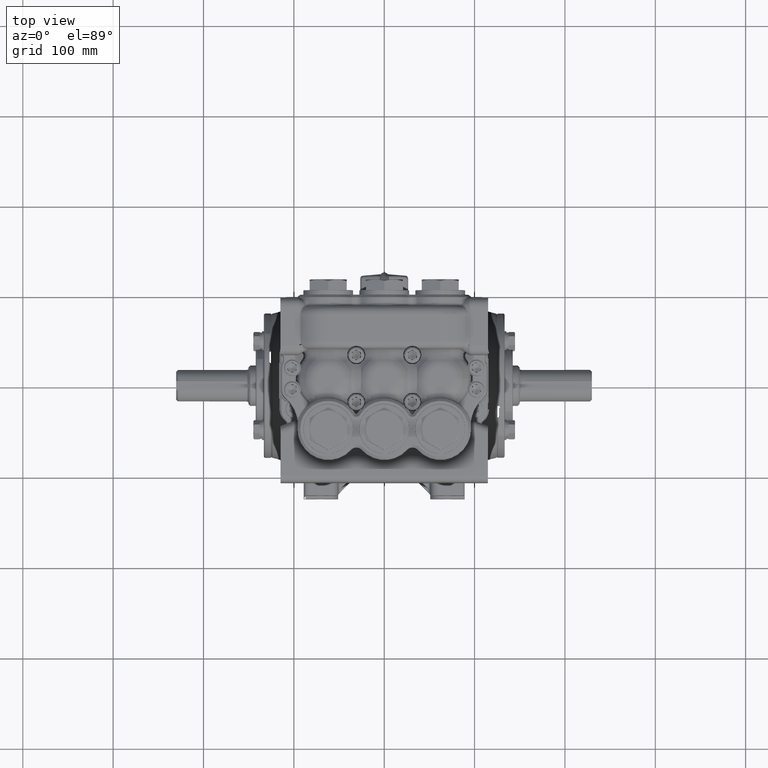
[diagram: clean part render]
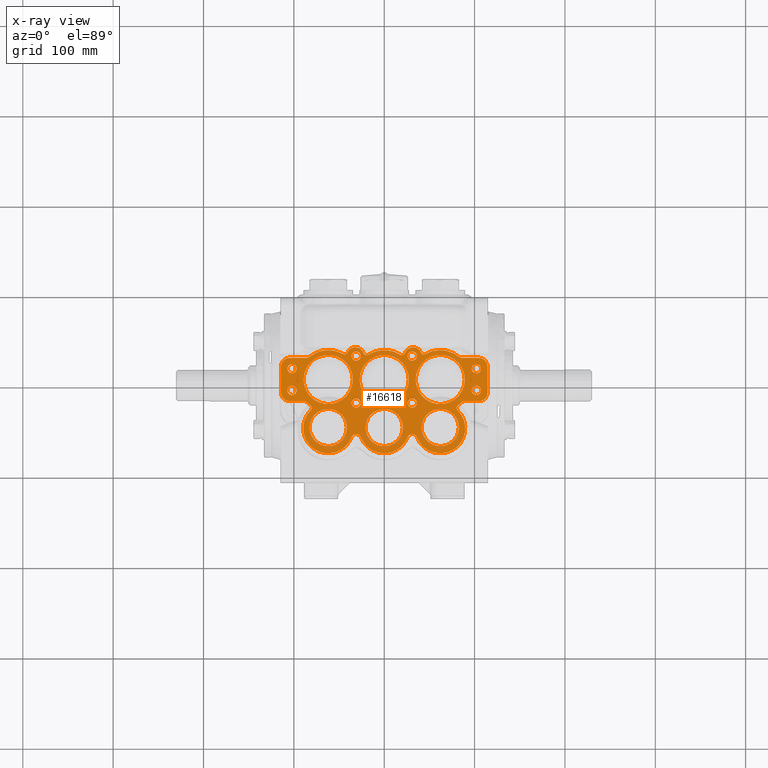
[diagram: x-ray — body ghosted, one internal face saturated and labeled with its STEP entity id]
A machine part, top view, then the same camera in x-ray: the body is ghosted and one INTERNAL B-rep face — a face not visible from any outside direction — is saturated and labeled: STEP entity #16618.
In plain terms, the highlighted planar face has unit normal (0, 0, 1).
Its self-contained STEP definition (entity closure, byte-faithful):
#87 = EDGE_CURVE ( 'NONE', #70146, #107165, #109327, .T. ) ;
#247 = EDGE_LOOP ( 'NONE', ( #92332, #5311 ) ) ;
#336 = ORIENTED_EDGE ( 'NONE', *, *, #91990, .T. ) ;
#935 = DIRECTION ( 'NONE',  ( -0.0000000000000000000, -0.0000000000000000000, 1.000000000000000000 ) ) ;
#1042 = ORIENTED_EDGE ( 'NONE', *, *, #62685, .T. ) ;
#1096 = AXIS2_PLACEMENT_3D ( 'NONE', #120310, #25365, #67637 ) ;
#1102 = CARTESIAN_POINT ( 'NONE',  ( -2.440944881889764329, -3.329552058504237249E-16, 15.33165354330710350 ) ) ;
#1359 = DIRECTION ( 'NONE',  ( -0.0000000000000000000, -0.0000000000000000000, 1.000000000000000000 ) ) ;
#1534 = CARTESIAN_POINT ( 'NONE',  ( -4.499999999999995559, -0.5687992125984255853, 15.33165354330710350 ) ) ;
#1686 = CIRCLE ( 'NONE', #79221, 1.363000000000001544 ) ;
#1700 = ORIENTED_EDGE ( 'NONE', *, *, #66561, .T. ) ;
#1773 = ORIENTED_EDGE ( 'NONE', *, *, #129020, .T. ) ;
#2372 = CARTESIAN_POINT ( 'NONE',  ( 3.361465562303388666, 0.9474999999999952349, 15.33165354330710350 ) ) ;
#2503 = DIRECTION ( 'NONE',  ( 0.0000000000000000000, 0.0000000000000000000, 1.000000000000000000 ) ) ;
#2916 = CARTESIAN_POINT ( 'NONE',  ( -3.302499300227540679, -1.237654226447215899, 15.33165354330710350 ) ) ;
#2980 = EDGE_CURVE ( 'NONE', #101355, #34244, #62483, .T. ) ;
#3119 = EDGE_CURVE ( 'NONE', #28135, #40274, #4846, .T. ) ;
#3217 = EDGE_CURVE ( 'NONE', #85536, #23953, #35841, .T. ) ;
#3228 = VERTEX_POINT ( 'NONE', #29912 ) ;
#3454 = AXIS2_PLACEMENT_3D ( 'NONE', #103724, #8750, #51070 ) ;
#3722 = LINE ( 'NONE', #46039, #18727 ) ;
#3799 = AXIS2_PLACEMENT_3D ( 'NONE', #125204, #30244, #72523 ) ;
#3849 = DIRECTION ( 'NONE',  ( 0.0000000000000000000, 0.0000000000000000000, -1.000000000000000000 ) ) ;
#3881 = ORIENTED_EDGE ( 'NONE', *, *, #19353, .T. ) ;
#4259 = AXIS2_PLACEMENT_3D ( 'NONE', #74408, #116692, #21718 ) ;
#4263 = CARTESIAN_POINT ( 'NONE',  ( -1.631000000000000671, -2.092000000000000970, 15.33165354330710350 ) ) ;
#4294 = CARTESIAN_POINT ( 'NONE',  ( 1.220472440944881276, -1.023622047244094224, 15.33165354330710350 ) ) ;
#4546 = CIRCLE ( 'NONE', #82088, 1.092499999999994698 ) ;
#4707 = DIRECTION ( 'NONE',  ( 1.000000000000000000, 0.0000000000000000000, 0.0000000000000000000 ) ) ;
#4738 = FACE_BOUND ( 'NONE', #7419, .T. ) ;
#4846 = CIRCLE ( 'NONE', #124403, 0.1450000000000045974 ) ;
#5213 = EDGE_CURVE ( 'NONE', #19508, #7643, #71969, .T. ) ;
#5311 = ORIENTED_EDGE ( 'NONE', *, *, #54598, .F. ) ;
#5405 = CARTESIAN_POINT ( 'NONE',  ( 2.440999999999998948, 0.0000000000000000000, 15.33165354330710350 ) ) ;
#5419 = PLANE ( 'NONE',  #109583 ) ;
#5575 = ORIENTED_EDGE ( 'NONE', *, *, #125056, .F. ) ;
#5624 = ORIENTED_EDGE ( 'NONE', *, *, #46014, .T. ) ;
#5964 = VECTOR ( 'NONE', #64514, 39.37007874015748143 ) ;
#5987 = CARTESIAN_POINT ( 'NONE',  ( 1.220472440944881276, -2.595029314722647751, 15.33165354330710350 ) ) ;
#6256 = VERTEX_POINT ( 'NONE', #100017 ) ;
#6283 = EDGE_CURVE ( 'NONE', #60891, #94788, #109715, .T. ) ;
#6342 = DIRECTION ( 'NONE',  ( 1.000000000000000000, 0.0000000000000000000, 0.0000000000000000000 ) ) ;
#6785 = EDGE_LOOP ( 'NONE', ( #1042, #24891 ) ) ;
#6951 = AXIS2_PLACEMENT_3D ( 'NONE', #93929, #136193, #41255 ) ;
#7060 = EDGE_CURVE ( 'NONE', #30432, #6256, #30191, .T. ) ;
#7375 = AXIS2_PLACEMENT_3D ( 'NONE', #37364, #79639, #121901 ) ;
#7419 = EDGE_LOOP ( 'NONE', ( #75096, #5575 ) ) ;
#7643 = VERTEX_POINT ( 'NONE', #129572 ) ;
#7859 = CIRCLE ( 'NONE', #85376, 0.2007874015748029040 ) ;
#7908 = AXIS2_PLACEMENT_3D ( 'NONE', #66886, #109151, #14176 ) ;
#7942 = CARTESIAN_POINT ( 'NONE',  ( -3.266504291152520167, 0.9821103103917191435, 15.33165354330710350 ) ) ;
#8294 = CIRCLE ( 'NONE', #85776, 0.1457408926346309141 ) ;
#8339 = ORIENTED_EDGE ( 'NONE', *, *, #81875, .F. ) ;
#8521 = AXIS2_PLACEMENT_3D ( 'NONE', #4294, #78487, #120758 ) ;
#8623 = VERTEX_POINT ( 'NONE', #4263 ) ;
#8750 = DIRECTION ( 'NONE',  ( 0.0000000000000000000, 0.0000000000000000000, 1.000000000000000000 ) ) ;
#8767 = DIRECTION ( 'NONE',  ( 1.000000000000000000, 0.0000000000000000000, 0.0000000000000000000 ) ) ;
#8843 = EDGE_LOOP ( 'NONE', ( #98618, #10335 ) ) ;
#9165 = ORIENTED_EDGE ( 'NONE', *, *, #6283, .T. ) ;
#9184 = VECTOR ( 'NONE', #39967, 39.37007874015748143 ) ;
#9223 = VERTEX_POINT ( 'NONE', #79326 ) ;
#9289 = VERTEX_POINT ( 'NONE', #48815 ) ;
#9517 = ORIENTED_EDGE ( 'NONE', *, *, #89019, .T. ) ;
#9530 = CARTESIAN_POINT ( 'NONE',  ( 1.603962561608296866, 1.182100231262654511, 15.33165354330710350 ) ) ;
#9575 = EDGE_CURVE ( 'NONE', #96112, #83752, #109901, .T. ) ;
#9746 = CARTESIAN_POINT ( 'NONE',  ( -3.508033327146295122, -0.9474999999999960121, 15.33165354330710350 ) ) ;
#9971 = DIRECTION ( 'NONE',  ( -0.0000000000000000000, -0.0000000000000000000, 1.000000000000000000 ) ) ;
#10335 = ORIENTED_EDGE ( 'NONE', *, *, #2980, .F. ) ;
#10632 = DIRECTION ( 'NONE',  ( 1.000000000000000000, 0.0000000000000000000, 0.0000000000000000000 ) ) ;
#10792 = CARTESIAN_POINT ( 'NONE',  ( 1.371092085564177943, 1.310259302796248620E-16, 15.33165354330710350 ) ) ;
#10981 = EDGE_CURVE ( 'NONE', #3228, #30918, #8294, .T. ) ;
#12131 = AXIS2_PLACEMENT_3D ( 'NONE', #63361, #105629, #10632 ) ;
#12150 = DIRECTION ( 'NONE',  ( 1.000000000000000000, 0.0000000000000000000, 0.0000000000000000000 ) ) ;
#13058 = CIRCLE ( 'NONE', #90632, 1.282999999999996144 ) ;
#13344 = CARTESIAN_POINT ( 'NONE',  ( -1.204221972081856105E-15, -2.092000000000000082, 15.33165354330710350 ) ) ;
#13380 = CARTESIAN_POINT ( 'NONE',  ( 0.8099999999999990541, -2.092000000000000082, 15.33165354330710350 ) ) ;
#14039 = DIRECTION ( 'NONE',  ( 1.000000000000000000, 0.0000000000000000000, 0.0000000000000000000 ) ) ;
#14176 = DIRECTION ( 'NONE',  ( 1.000000000000000000, 0.0000000000000000000, 0.0000000000000000000 ) ) ;
#14372 = CARTESIAN_POINT ( 'NONE',  ( 3.266504291152518835, 0.9821103103917191435, 15.33165354330710350 ) ) ;
#14999 = DIRECTION ( 'NONE',  ( 1.000000000000000000, 0.0000000000000000000, 0.0000000000000000000 ) ) ;
#15397 = VERTEX_POINT ( 'NONE', #123632 ) ;
#15583 = DIRECTION ( 'NONE',  ( 1.000000000000000000, 0.0000000000000000000, 0.0000000000000000000 ) ) ;
#15824 = FACE_BOUND ( 'NONE', #112547, .T. ) ;
#16029 = DIRECTION ( 'NONE',  ( 1.000000000000000000, 0.0000000000000000000, 0.0000000000000000000 ) ) ;
#16031 = VERTEX_POINT ( 'NONE', #74878 ) ;
#16492 = ORIENTED_EDGE ( 'NONE', *, *, #32915, .T. ) ;
#16618 = ADVANCED_FACE ( 'NONE', ( #57440, #99709, #4738, #47054, #89343, #131611, #36660, #78927, #121201, #26255, #68530, #110796, #15824, #58122, #100392 ), #5419, .T. ) ;
#16821 = DIRECTION ( 'NONE',  ( 0.0000000000000000000, 0.0000000000000000000, 1.000000000000000000 ) ) ;
#17545 = VERTEX_POINT ( 'NONE', #72663 ) ;
#17908 = ORIENTED_EDGE ( 'NONE', *, *, #126475, .T. ) ;
#17968 = CARTESIAN_POINT ( 'NONE',  ( 3.362644217051137918, -1.004111216730033895, 15.33165354330710350 ) ) ;
#18180 = CARTESIAN_POINT ( 'NONE',  ( -3.362644217051137918, -1.004111216730035006, 15.33165354330710350 ) ) ;
#18562 = DIRECTION ( 'NONE',  ( 1.000000000000000000, 0.0000000000000000000, 0.0000000000000000000 ) ) ;
#18727 = VECTOR ( 'NONE', #88332, 39.37007874015748143 ) ;
#18790 = CARTESIAN_POINT ( 'NONE',  ( 1.736395246598151143, 1.242944226301745170, 15.33165354330710350 ) ) ;
#19353 = EDGE_CURVE ( 'NONE', #66609, #113968, #117188, .T. ) ;
#19508 = VERTEX_POINT ( 'NONE', #35377 ) ;
#19802 = EDGE_CURVE ( 'NONE', #98849, #72262, #32614, .T. ) ;
#20108 = EDGE_LOOP ( 'NONE', ( #90124, #53494, #103084, #1700, #83814, #45259, #9517, #112330, #336, #61666, #87093, #113833, #130659, #53950, #9165, #110227, #28709, #112581, #65321, #132116, #3881, #17908, #35906, #31374, #45826, #52262, #103572, #78387, #1773, #120584, #107615, #41533, #65953 ) ) ;
#20221 = ORIENTED_EDGE ( 'NONE', *, *, #64283, .T. ) ;
#20703 = EDGE_CURVE ( 'NONE', #115434, #28135, #1686, .T. ) ;
#21153 = CARTESIAN_POINT ( 'NONE',  ( 1.421161981903317217, -2.517901445895005086, 15.33165354330710350 ) ) ;
#21364 = CARTESIAN_POINT ( 'NONE',  ( -3.201549489594020415, -1.341741380952743867, 15.33165354330710350 ) ) ;
#21718 = DIRECTION ( 'NONE',  ( 1.000000000000000000, 0.0000000000000000000, 0.0000000000000000000 ) ) ;
#21887 = CIRCLE ( 'NONE', #99343, 0.2007874015748029040 ) ;
#21900 = DIRECTION ( 'NONE',  ( 0.0000000000000000000, 0.0000000000000000000, 1.000000000000000000 ) ) ;
#22024 = CARTESIAN_POINT ( 'NONE',  ( -4.216535433070866645, 0.4724409448818898127, 15.33165354330710350 ) ) ;
#22228 = CARTESIAN_POINT ( 'NONE',  ( 1.259842519685038909, 0.9474999999999980105, 15.33165354330710350 ) ) ;
#22431 = CARTESIAN_POINT ( 'NONE',  ( 4.499999999999995559, -0.5687992125984234759, 15.33165354330710350 ) ) ;
#23953 = VERTEX_POINT ( 'NONE', #93308 ) ;
#24057 = CIRCLE ( 'NONE', #101542, 1.069907914435821006 ) ;
#24082 = CIRCLE ( 'NONE', #101553, 0.8100000000000000533 ) ;
#24129 = VERTEX_POINT ( 'NONE', #2372 ) ;
#24336 = CARTESIAN_POINT ( 'NONE',  ( -5.463695987328526437E-16, 0.0000000000000000000, 15.33165354330710350 ) ) ;
#24383 = CIRCLE ( 'NONE', #101870, 0.1475790954831033286 ) ;
#24719 = CARTESIAN_POINT ( 'NONE',  ( -0.6819191757926990061, 1.086772854687765744, 15.33165354330710350 ) ) ;
#24891 = ORIENTED_EDGE ( 'NONE', *, *, #69694, .T. ) ;
#25365 = DIRECTION ( 'NONE',  ( 0.0000000000000000000, 0.0000000000000000000, 1.000000000000000000 ) ) ;
#25951 = CARTESIAN_POINT ( 'NONE',  ( -3.219657529233524773, -1.118649012365754203, 15.33165354330710350 ) ) ;
#25969 = DIRECTION ( 'NONE',  ( 1.000000000000000000, 0.0000000000000000000, 0.0000000000000000000 ) ) ;
#26235 = DIRECTION ( 'NONE',  ( 0.0000000000000000000, 0.0000000000000000000, 1.000000000000000000 ) ) ;
#26255 = FACE_BOUND ( 'NONE', #111768, .T. ) ;
#27751 = CARTESIAN_POINT ( 'NONE',  ( -4.015748031496062964, 0.4724409448818898127, 15.33165354330710350 ) ) ;
#28135 = VERTEX_POINT ( 'NONE', #25951 ) ;
#28478 = AXIS2_PLACEMENT_3D ( 'NONE', #13344, #55660, #97928 ) ;
#28709 = ORIENTED_EDGE ( 'NONE', *, *, #111149, .T. ) ;
#29445 = AXIS2_PLACEMENT_3D ( 'NONE', #61461, #103742, #8767 ) ;
#29670 = DIRECTION ( 'NONE',  ( 1.000000000000000000, -9.255538478269908516E-16, 0.0000000000000000000 ) ) ;
#29912 = CARTESIAN_POINT ( 'NONE',  ( -1.603962561608297754, 1.182100231262655177, 15.33165354330710350 ) ) ;
#30047 = CIRCLE ( 'NONE', #107497, 0.2007874015748029040 ) ;
#30191 = CIRCLE ( 'NONE', #47905, 1.069907914435821006 ) ;
#30244 = DIRECTION ( 'NONE',  ( 0.0000000000000000000, 0.0000000000000000000, -1.000000000000000000 ) ) ;
#30432 = VERTEX_POINT ( 'NONE', #10792 ) ;
#30575 = VERTEX_POINT ( 'NONE', #131205 ) ;
#30782 = AXIS2_PLACEMENT_3D ( 'NONE', #96351, #1359, #43680 ) ;
#30839 = DIRECTION ( 'NONE',  ( 0.0000000000000000000, 0.0000000000000000000, -1.000000000000000000 ) ) ;
#30918 = VERTEX_POINT ( 'NONE', #133148 ) ;
#31168 = DIRECTION ( 'NONE',  ( -0.0000000000000000000, -0.0000000000000000000, -1.000000000000000000 ) ) ;
#31170 = EDGE_LOOP ( 'NONE', ( #94272, #69979 ) ) ;
#31176 = CARTESIAN_POINT ( 'NONE',  ( -2.441000000000000725, -2.092000000000000970, 15.33165354330710350 ) ) ;
#31374 = ORIENTED_EDGE ( 'NONE', *, *, #9575, .T. ) ;
#31435 = CARTESIAN_POINT ( 'NONE',  ( 3.302499300227539347, -1.237654226447215899, 15.33165354330710350 ) ) ;
#31899 = AXIS2_PLACEMENT_3D ( 'NONE', #24336, #66608, #108877 ) ;
#31904 = CIRCLE ( 'NONE', #109332, 1.092499999999994476 ) ;
#31919 = CIRCLE ( 'NONE', #109350, 0.2007874015748029040 ) ;
#32500 = CIRCLE ( 'NONE', #127661, 1.092499999999994476 ) ;
#32544 = ORIENTED_EDGE ( 'NONE', *, *, #87, .T. ) ;
#32614 = CIRCLE ( 'NONE', #110075, 0.3787007874015705378 ) ;
#32915 = EDGE_CURVE ( 'NONE', #6256, #30432, #111419, .T. ) ;
#33093 = CIRCLE ( 'NONE', #110560, 0.8100000000000000533 ) ;
#33151 = DIRECTION ( 'NONE',  ( 1.000000000000000000, 0.0000000000000000000, 0.0000000000000000000 ) ) ;
#33487 = DIRECTION ( 'NONE',  ( 1.000000000000000000, 0.0000000000000000000, 0.0000000000000000000 ) ) ;
#33576 = DIRECTION ( 'NONE',  ( 1.000000000000000000, 0.0000000000000000000, 0.0000000000000000000 ) ) ;
#33858 = CIRCLE ( 'NONE', #111324, 1.092499999999994476 ) ;
#34010 = CARTESIAN_POINT ( 'NONE',  ( 1.259842519685039131, -0.9474999999999947908, 15.33165354330710350 ) ) ;
#34244 = VERTEX_POINT ( 'NONE', #95797 ) ;
#34887 = CIRCLE ( 'NONE', #112374, 0.1537240795470805055 ) ;
#34960 = DIRECTION ( 'NONE',  ( 0.0000000000000000000, 0.0000000000000000000, 1.000000000000000000 ) ) ;
#35377 = CARTESIAN_POINT ( 'NONE',  ( -3.814960629921260615, -0.4724409448818896462, 15.33165354330710350 ) ) ;
#35571 = VERTEX_POINT ( 'NONE', #124664 ) ;
#35841 = CIRCLE ( 'NONE', #95615, 0.2007874015748029040 ) ;
#35906 = ORIENTED_EDGE ( 'NONE', *, *, #98004, .T. ) ;
#36000 = CARTESIAN_POINT ( 'NONE',  ( -5.463695987328526437E-16, -2.125984251968504157, 15.33165354330710350 ) ) ;
#36006 = VERTEX_POINT ( 'NONE', #131997 ) ;
#36021 = DIRECTION ( 'NONE',  ( -0.0000000000000000000, -0.0000000000000000000, 1.000000000000000000 ) ) ;
#36210 = DIRECTION ( 'NONE',  ( 0.0000000000000000000, 0.0000000000000000000, 1.000000000000000000 ) ) ;
#36651 = EDGE_LOOP ( 'NONE', ( #8339, #79278 ) ) ;
#36660 = FACE_BOUND ( 'NONE', #247, .T. ) ;
#36867 = CARTESIAN_POINT ( 'NONE',  ( -4.015748031496062964, 0.4724409448818898127, 15.33165354330710350 ) ) ;
#37361 = AXIS2_PLACEMENT_3D ( 'NONE', #59033, #101313, #6342 ) ;
#37364 = CARTESIAN_POINT ( 'NONE',  ( -1.220472440944882386, -2.595029314722647751, 15.33165354330710350 ) ) ;
#37643 = DIRECTION ( 'NONE',  ( -0.0000000000000000000, 1.000000000000000000, 0.0000000000000000000 ) ) ;
#37691 = CARTESIAN_POINT ( 'NONE',  ( -1.019782899986446667, -2.517901445895004642, 15.33165354330710350 ) ) ;
#37981 = VERTEX_POINT ( 'NONE', #7942 ) ;
#39274 = AXIS2_PLACEMENT_3D ( 'NONE', #5987, #48312, #90624 ) ;
#39650 = DIRECTION ( 'NONE',  ( 1.000000000000000000, 0.0000000000000000000, 0.0000000000000000000 ) ) ;
#39683 = VERTEX_POINT ( 'NONE', #112381 ) ;
#39967 = DIRECTION ( 'NONE',  ( -1.000000000000000000, 5.055837290980251602E-16, 0.0000000000000000000 ) ) ;
#40071 = CIRCLE ( 'NONE', #117482, 0.2007874015748029040 ) ;
#40231 = VERTEX_POINT ( 'NONE', #60935 ) ;
#40274 = VERTEX_POINT ( 'NONE', #21364 ) ;
#40332 = VERTEX_POINT ( 'NONE', #60762 ) ;
#40333 = DIRECTION ( 'NONE',  ( -0.0000000000000000000, -0.0000000000000000000, 1.000000000000000000 ) ) ;
#40343 = CIRCLE ( 'NONE', #117755, 0.1475790954831082413 ) ;
#40501 = DIRECTION ( 'NONE',  ( 1.000000000000000000, 0.0000000000000000000, 0.0000000000000000000 ) ) ;
#41100 = EDGE_CURVE ( 'NONE', #101208, #86594, #52547, .T. ) ;
#41255 = DIRECTION ( 'NONE',  ( 1.000000000000000000, 0.0000000000000000000, 0.0000000000000000000 ) ) ;
#41533 = ORIENTED_EDGE ( 'NONE', *, *, #54470, .T. ) ;
#41636 = EDGE_CURVE ( 'NONE', #94788, #75247, #34887, .T. ) ;
#41669 = CARTESIAN_POINT ( 'NONE',  ( -1.204221972081856105E-15, -2.092000000000000082, 15.33165354330710350 ) ) ;
#41831 = DIRECTION ( 'NONE',  ( 1.000000000000000000, 0.0000000000000000000, 0.0000000000000000000 ) ) ;
#43172 = ORIENTED_EDGE ( 'NONE', *, *, #49829, .T. ) ;
#43269 = DIRECTION ( 'NONE',  ( 1.000000000000000000, 0.0000000000000000000, 0.0000000000000000000 ) ) ;
#43312 = VECTOR ( 'NONE', #135033, 39.37007874015748143 ) ;
#43417 = EDGE_CURVE ( 'NONE', #34244, #101355, #90549, .T. ) ;
#43427 = DIRECTION ( 'NONE',  ( 0.0000000000000000000, 0.0000000000000000000, 1.000000000000000000 ) ) ;
#43680 = DIRECTION ( 'NONE',  ( 1.000000000000000000, 0.0000000000000000000, 0.0000000000000000000 ) ) ;
#43807 = VERTEX_POINT ( 'NONE', #22024 ) ;
#44823 = DIRECTION ( 'NONE',  ( 1.000000000000000000, 0.0000000000000000000, 0.0000000000000000000 ) ) ;
#45188 = CIRCLE ( 'NONE', #122668, 0.3787007874015705378 ) ;
#45232 = DIRECTION ( 'NONE',  ( -0.0000000000000000000, -0.0000000000000000000, -1.000000000000000000 ) ) ;
#45259 = ORIENTED_EDGE ( 'NONE', *, *, #95931, .T. ) ;
#45394 = EDGE_LOOP ( 'NONE', ( #62748, #107903 ) ) ;
#45698 = AXIS2_PLACEMENT_3D ( 'NONE', #46070, #88365, #130633 ) ;
#45826 = ORIENTED_EDGE ( 'NONE', *, *, #82840, .T. ) ;
#46014 = EDGE_CURVE ( 'NONE', #8623, #35571, #50766, .T. ) ;
#46039 = CARTESIAN_POINT ( 'NONE',  ( 1.259842519685040019, -0.9474999999999933475, 15.33165354330710350 ) ) ;
#46070 = CARTESIAN_POINT ( 'NONE',  ( 3.508033327146296454, -1.162499999999998090, 15.33165354330710350 ) ) ;
#46169 = DIRECTION ( 'NONE',  ( -1.000000000000000000, 0.0000000000000000000, 0.0000000000000000000 ) ) ;
#47054 = FACE_BOUND ( 'NONE', #31170, .T. ) ;
#47722 = DIRECTION ( 'NONE',  ( -0.0000000000000000000, -0.0000000000000000000, -1.000000000000000000 ) ) ;
#47736 = CARTESIAN_POINT ( 'NONE',  ( 1.259842519685038909, 1.024000000000000021, 15.33165354330710350 ) ) ;
#47905 = AXIS2_PLACEMENT_3D ( 'NONE', #5405, #47722, #90018 ) ;
#48133 = CARTESIAN_POINT ( 'NONE',  ( -3.361465562303387333, 0.9474999999999957900, 15.33165354330710350 ) ) ;
#48312 = DIRECTION ( 'NONE',  ( -0.0000000000000000000, -0.0000000000000000000, -1.000000000000000000 ) ) ;
#48684 = EDGE_CURVE ( 'NONE', #87049, #98683, #40071, .T. ) ;
#48815 = CARTESIAN_POINT ( 'NONE',  ( 1.019782899986445557, -2.517901445895005086, 15.33165354330710350 ) ) ;
#48959 = AXIS2_PLACEMENT_3D ( 'NONE', #31435, #73694, #115985 ) ;
#49829 = EDGE_CURVE ( 'NONE', #35571, #8623, #24082, .T. ) ;
#49837 = AXIS2_PLACEMENT_3D ( 'NONE', #57414, #99683, #4707 ) ;
#49867 = VERTEX_POINT ( 'NONE', #22431 ) ;
#49993 = AXIS2_PLACEMENT_3D ( 'NONE', #111792, #16821, #59106 ) ;
#50169 = AXIS2_PLACEMENT_3D ( 'NONE', #131170, #36210, #78484 ) ;
#50431 = EDGE_CURVE ( 'NONE', #30918, #37981, #13058, .T. ) ;
#50475 = LINE ( 'NONE', #92760, #43312 ) ;
#50501 = CIRCLE ( 'NONE', #127930, 0.2007874015748029040 ) ;
#50748 = EDGE_CURVE ( 'NONE', #30575, #112728, #33093, .T. ) ;
#50766 = CIRCLE ( 'NONE', #128187, 0.8100000000000000533 ) ;
#51070 = DIRECTION ( 'NONE',  ( 1.000000000000000000, 0.0000000000000000000, 0.0000000000000000000 ) ) ;
#51101 = CARTESIAN_POINT ( 'NONE',  ( 3.814960629921258839, 0.4724409448818898127, 15.33165354330710350 ) ) ;
#51124 = AXIS2_PLACEMENT_3D ( 'NONE', #67703, #109966, #14999 ) ;
#51687 = AXIS2_PLACEMENT_3D ( 'NONE', #116332, #53256, #95532 ) ;
#52262 = ORIENTED_EDGE ( 'NONE', *, *, #99063, .T. ) ;
#52294 = DIRECTION ( 'NONE',  ( 1.000000000000000000, 0.0000000000000000000, 0.0000000000000000000 ) ) ;
#52432 = CARTESIAN_POINT ( 'NONE',  ( 3.361465562303388666, 1.095079095483103782, 15.33165354330710350 ) ) ;
#52547 = CIRCLE ( 'NONE', #129991, 1.282999999999995477 ) ;
#52629 = CARTESIAN_POINT ( 'NONE',  ( 1.069907914435820340, 0.0000000000000000000, 15.33165354330710350 ) ) ;
#52675 = EDGE_CURVE ( 'NONE', #36006, #60891, #64053, .T. ) ;
#53256 = DIRECTION ( 'NONE',  ( -0.0000000000000000000, -0.0000000000000000000, -1.000000000000000000 ) ) ;
#53494 = ORIENTED_EDGE ( 'NONE', *, *, #118272, .T. ) ;
#53593 = CARTESIAN_POINT ( 'NONE',  ( 4.216535433070864869, -0.4724409448818896462, 15.33165354330710350 ) ) ;
#53950 = ORIENTED_EDGE ( 'NONE', *, *, #52675, .T. ) ;
#54205 = CARTESIAN_POINT ( 'NONE',  ( -1.421259842519686512, -1.023622047244094224, 15.33165354330710350 ) ) ;
#54470 = EDGE_CURVE ( 'NONE', #70699, #9289, #4546, .T. ) ;
#54598 = EDGE_CURVE ( 'NONE', #98683, #87049, #110846, .T. ) ;
#55660 = DIRECTION ( 'NONE',  ( 0.0000000000000000000, 0.0000000000000000000, -1.000000000000000000 ) ) ;
#56379 = EDGE_CURVE ( 'NONE', #24129, #101208, #40343, .T. ) ;
#56399 = AXIS2_PLACEMENT_3D ( 'NONE', #41669, #83948, #126210 ) ;
#57414 = CARTESIAN_POINT ( 'NONE',  ( 4.015748031496062076, -0.4724409448818896462, 15.33165354330710350 ) ) ;
#57440 = FACE_OUTER_BOUND ( 'NONE', #20108, .T. ) ;
#57801 = EDGE_CURVE ( 'NONE', #17545, #16031, #33858, .T. ) ;
#57841 = AXIS2_PLACEMENT_3D ( 'NONE', #18790, #93001, #135267 ) ;
#58122 = FACE_BOUND ( 'NONE', #6785, .T. ) ;
#58530 = VERTEX_POINT ( 'NONE', #78249 ) ;
#59033 = CARTESIAN_POINT ( 'NONE',  ( -2.441000000000000725, 5.978528219360845830E-16, 15.33165354330710350 ) ) ;
#59106 = DIRECTION ( 'NONE',  ( 1.000000000000000000, 0.0000000000000000000, 0.0000000000000000000 ) ) ;
#59315 = EDGE_CURVE ( 'NONE', #106360, #9223, #31904, .T. ) ;
#60640 = ORIENTED_EDGE ( 'NONE', *, *, #126320, .F. ) ;
#60762 = CARTESIAN_POINT ( 'NONE',  ( 1.019685039370078483, -1.023622047244094224, 15.33165354330710350 ) ) ;
#60891 = VERTEX_POINT ( 'NONE', #133084 ) ;
#60914 = CIRCLE ( 'NONE', #1096, 0.3787007874015705378 ) ;
#60935 = CARTESIAN_POINT ( 'NONE',  ( 1.421259842519684291, 1.023622047244094446, 15.33165354330710350 ) ) ;
#61461 = CARTESIAN_POINT ( 'NONE',  ( -1.220472440944882386, 1.023622047244094446, 15.33165354330710350 ) ) ;
#61666 = ORIENTED_EDGE ( 'NONE', *, *, #56379, .T. ) ;
#62483 = CIRCLE ( 'NONE', #122202, 0.2007874015748029040 ) ;
#62685 = EDGE_CURVE ( 'NONE', #130819, #111273, #116184, .T. ) ;
#62748 = ORIENTED_EDGE ( 'NONE', *, *, #3217, .F. ) ;
#63241 = CIRCLE ( 'NONE', #3454, 0.3787007874015708153 ) ;
#63361 = CARTESIAN_POINT ( 'NONE',  ( -4.015748031496062964, -0.4724409448818896462, 15.33165354330710350 ) ) ;
#63590 = CIRCLE ( 'NONE', #3799, 0.8100000000000000533 ) ;
#63928 = VERTEX_POINT ( 'NONE', #85815 ) ;
#64053 = CIRCLE ( 'NONE', #4259, 0.1537240795470798116 ) ;
#64096 = EDGE_CURVE ( 'NONE', #112609, #36006, #63241, .T. ) ;
#64199 = DIRECTION ( 'NONE',  ( 1.000000000000000000, 0.0000000000000000000, 0.0000000000000000000 ) ) ;
#64283 = EDGE_CURVE ( 'NONE', #63928, #91314, #67672, .T. ) ;
#64514 = DIRECTION ( 'NONE',  ( -1.000000000000000000, -5.055837290980251602E-16, 0.0000000000000000000 ) ) ;
#64868 = CARTESIAN_POINT ( 'NONE',  ( 2.440944881889763440, -3.329552058504237249E-16, 15.33165354330710350 ) ) ;
#65321 = ORIENTED_EDGE ( 'NONE', *, *, #50431, .T. ) ;
#65953 = ORIENTED_EDGE ( 'NONE', *, *, #68043, .T. ) ;
#66561 = EDGE_CURVE ( 'NONE', #69176, #106346, #105469, .T. ) ;
#66608 = DIRECTION ( 'NONE',  ( -0.0000000000000000000, -0.0000000000000000000, -1.000000000000000000 ) ) ;
#66609 = VERTEX_POINT ( 'NONE', #48133 ) ;
#66726 = CIRCLE ( 'NONE', #6951, 0.3787007874015708153 ) ;
#66746 = CARTESIAN_POINT ( 'NONE',  ( -1.220472440944883497, -1.023622047244094224, 15.33165354330710350 ) ) ;
#66784 = CARTESIAN_POINT ( 'NONE',  ( 3.814960629921258839, -0.4724409448818896462, 15.33165354330710350 ) ) ;
#66843 = CARTESIAN_POINT ( 'NONE',  ( 1.421259842519684291, -1.023622047244094224, 15.33165354330710350 ) ) ;
#66886 = CARTESIAN_POINT ( 'NONE',  ( -2.441000000000000725, 5.978528219360845830E-16, 15.33165354330710350 ) ) ;
#67151 = CIRCLE ( 'NONE', #7375, 0.2150000000000041323 ) ;
#67637 = DIRECTION ( 'NONE',  ( 1.000000000000000000, 0.0000000000000000000, 0.0000000000000000000 ) ) ;
#67672 = CIRCLE ( 'NONE', #7908, 1.069907914435821006 ) ;
#67703 = CARTESIAN_POINT ( 'NONE',  ( -1.220472440944883497, -1.023622047244094224, 15.33165354330710350 ) ) ;
#68043 = EDGE_CURVE ( 'NONE', #9289, #106360, #99006, .T. ) ;
#68278 = CARTESIAN_POINT ( 'NONE',  ( -0.7636240843073032192, 1.216985759413899970, 15.33165354330710350 ) ) ;
#68304 = CIRCLE ( 'NONE', #8521, 0.2007874015748029040 ) ;
#68506 = DIRECTION ( 'NONE',  ( 1.000000000000000000, 0.0000000000000000000, 0.0000000000000000000 ) ) ;
#68530 = FACE_BOUND ( 'NONE', #73207, .T. ) ;
#68655 = EDGE_LOOP ( 'NONE', ( #43172, #5624 ) ) ;
#69108 = AXIS2_PLACEMENT_3D ( 'NONE', #99075, #36021, #78305 ) ;
#69176 = VERTEX_POINT ( 'NONE', #17968 ) ;
#69494 = AXIS2_PLACEMENT_3D ( 'NONE', #104970, #9971, #52294 ) ;
#69694 = EDGE_CURVE ( 'NONE', #111273, #130819, #88244, .T. ) ;
#69950 = EDGE_CURVE ( 'NONE', #106346, #58530, #128969, .T. ) ;
#69979 = ORIENTED_EDGE ( 'NONE', *, *, #98001, .F. ) ;
#70007 = DIRECTION ( 'NONE',  ( -0.0000000000000000000, -0.0000000000000000000, 1.000000000000000000 ) ) ;
#70027 = AXIS2_PLACEMENT_3D ( 'NONE', #86281, #128530, #33576 ) ;
#70146 = VERTEX_POINT ( 'NONE', #52629 ) ;
#70699 = VERTEX_POINT ( 'NONE', #37691 ) ;
#70855 = AXIS2_PLACEMENT_3D ( 'NONE', #64868, #107135, #12150 ) ;
#71258 = CARTESIAN_POINT ( 'NONE',  ( -4.015748031496062964, -0.4724409448818896462, 15.33165354330710350 ) ) ;
#71969 = CIRCLE ( 'NONE', #12131, 0.2007874015748029040 ) ;
#72262 = VERTEX_POINT ( 'NONE', #76217 ) ;
#72523 = DIRECTION ( 'NONE',  ( -1.000000000000000000, 0.0000000000000000000, 0.0000000000000000000 ) ) ;
#72660 = CARTESIAN_POINT ( 'NONE',  ( -1.019685039370079593, 1.023622047244094446, 15.33165354330710350 ) ) ;
#72663 = CARTESIAN_POINT ( 'NONE',  ( -3.533444881889758804, -2.125984251968504157, 15.33165354330710350 ) ) ;
#73107 = DIRECTION ( 'NONE',  ( -1.000000000000000000, 0.0000000000000000000, 0.0000000000000000000 ) ) ;
#73207 = EDGE_LOOP ( 'NONE', ( #86531, #20221 ) ) ;
#73422 = DIRECTION ( 'NONE',  ( 1.000000000000000000, 0.0000000000000000000, 0.0000000000000000000 ) ) ;
#73428 = DIRECTION ( 'NONE',  ( 0.0000000000000000000, 0.0000000000000000000, -1.000000000000000000 ) ) ;
#73674 = ORIENTED_EDGE ( 'NONE', *, *, #115222, .F. ) ;
#73694 = DIRECTION ( 'NONE',  ( -0.0000000000000000000, -0.0000000000000000000, -1.000000000000000000 ) ) ;
#74055 = ORIENTED_EDGE ( 'NONE', *, *, #135664, .F. ) ;
#74147 = EDGE_CURVE ( 'NONE', #37981, #66609, #24383, .T. ) ;
#74408 = CARTESIAN_POINT ( 'NONE',  ( 0.7636240843073022200, 1.216985759413899304, 15.33165354330710350 ) ) ;
#74878 = CARTESIAN_POINT ( 'NONE',  ( -1.421161981903318550, -2.517901445895005086, 15.33165354330710350 ) ) ;
#75096 = ORIENTED_EDGE ( 'NONE', *, *, #83323, .F. ) ;
#75247 = VERTEX_POINT ( 'NONE', #83927 ) ;
#75373 = VECTOR ( 'NONE', #37643, 39.37007874015748143 ) ;
#76217 = CARTESIAN_POINT ( 'NONE',  ( 4.121299212598424688, 0.9474999999999952349, 15.33165354330710350 ) ) ;
#76286 = DIRECTION ( 'NONE',  ( 1.000000000000000000, 1.967590660934735653E-16, 0.0000000000000000000 ) ) ;
#76954 = ORIENTED_EDGE ( 'NONE', *, *, #102901, .T. ) ;
#77164 = ORIENTED_EDGE ( 'NONE', *, *, #7060, .T. ) ;
#77204 = CARTESIAN_POINT ( 'NONE',  ( 3.219657529233519444, -1.118649012365749984, 15.33165354330710350 ) ) ;
#77248 = DIRECTION ( 'NONE',  ( 1.000000000000000000, 0.0000000000000000000, 0.0000000000000000000 ) ) ;
#78249 = CARTESIAN_POINT ( 'NONE',  ( 4.121299212598424688, -0.9474999999999942357, 15.33165354330710350 ) ) ;
#78271 = DIRECTION ( 'NONE',  ( 0.0000000000000000000, 0.0000000000000000000, 1.000000000000000000 ) ) ;
#78305 = DIRECTION ( 'NONE',  ( 1.000000000000000000, 0.0000000000000000000, 0.0000000000000000000 ) ) ;
#78387 = ORIENTED_EDGE ( 'NONE', *, *, #3119, .T. ) ;
#78484 = DIRECTION ( 'NONE',  ( 1.000000000000000000, 0.0000000000000000000, 0.0000000000000000000 ) ) ;
#78487 = DIRECTION ( 'NONE',  ( -0.0000000000000000000, -0.0000000000000000000, 1.000000000000000000 ) ) ;
#78651 = CARTESIAN_POINT ( 'NONE',  ( -1.736395246598152475, 1.242944226301745614, 15.33165354330710350 ) ) ;
#78927 = FACE_BOUND ( 'NONE', #36651, .T. ) ;
#79177 = EDGE_CURVE ( 'NONE', #15397, #40231, #128852, .T. ) ;
#79221 = AXIS2_PLACEMENT_3D ( 'NONE', #1102, #43427, #85699 ) ;
#79278 = ORIENTED_EDGE ( 'NONE', *, *, #135128, .F. ) ;
#79326 = CARTESIAN_POINT ( 'NONE',  ( 3.201549489594019082, -1.341741380952743645, 15.33165354330710350 ) ) ;
#79639 = DIRECTION ( 'NONE',  ( -0.0000000000000000000, -0.0000000000000000000, -1.000000000000000000 ) ) ;
#80361 = EDGE_CURVE ( 'NONE', #23953, #85536, #89197, .T. ) ;
#81875 = EDGE_CURVE ( 'NONE', #106518, #40332, #129227, .T. ) ;
#82080 = VERTEX_POINT ( 'NONE', #77204 ) ;
#82088 = AXIS2_PLACEMENT_3D ( 'NONE', #36000, #78271, #120548 ) ;
#82098 = EDGE_LOOP ( 'NONE', ( #60640, #74055 ) ) ;
#82349 = CARTESIAN_POINT ( 'NONE',  ( -3.361465562303387333, 1.095079095483099119, 15.33165354330710350 ) ) ;
#82611 = DIRECTION ( 'NONE',  ( 1.000000000000000000, 0.0000000000000000000, 0.0000000000000000000 ) ) ;
#82840 = EDGE_CURVE ( 'NONE', #83752, #134396, #3722, .T. ) ;
#83323 = EDGE_CURVE ( 'NONE', #39683, #43807, #50501, .T. ) ;
#83606 = CARTESIAN_POINT ( 'NONE',  ( -4.121299212598425576, -0.9474999999999961231, 15.33165354330710350 ) ) ;
#83752 = VERTEX_POINT ( 'NONE', #83606 ) ;
#83814 = ORIENTED_EDGE ( 'NONE', *, *, #69950, .T. ) ;
#83927 = CARTESIAN_POINT ( 'NONE',  ( -0.9068944816309724155, 1.161266051201140570, 15.33165354330710350 ) ) ;
#83948 = DIRECTION ( 'NONE',  ( 0.0000000000000000000, 0.0000000000000000000, -1.000000000000000000 ) ) ;
#85376 = AXIS2_PLACEMENT_3D ( 'NONE', #71258, #113527, #18562 ) ;
#85536 = VERTEX_POINT ( 'NONE', #72660 ) ;
#85699 = DIRECTION ( 'NONE',  ( 1.000000000000000000, 0.0000000000000000000, 0.0000000000000000000 ) ) ;
#85776 = AXIS2_PLACEMENT_3D ( 'NONE', #78651, #120926, #25969 ) ;
#85815 = CARTESIAN_POINT ( 'NONE',  ( -3.510907914435821287, 7.288787522157093710E-16, 15.33165354330710350 ) ) ;
#85836 = CARTESIAN_POINT ( 'NONE',  ( 2.440944881889763440, -2.989295336501413453E-16, 15.33165354330710350 ) ) ;
#86191 = CARTESIAN_POINT ( 'NONE',  ( -2.440944881889764329, -2.125984251968504157, 15.33165354330710350 ) ) ;
#86281 = CARTESIAN_POINT ( 'NONE',  ( -3.508033327146295122, -1.162500000000000089, 15.33165354330710350 ) ) ;
#86531 = ORIENTED_EDGE ( 'NONE', *, *, #135226, .T. ) ;
#86594 = VERTEX_POINT ( 'NONE', #111529 ) ;
#87049 = VERTEX_POINT ( 'NONE', #117470 ) ;
#87093 = ORIENTED_EDGE ( 'NONE', *, *, #41100, .T. ) ;
#87519 = DIRECTION ( 'NONE',  ( 1.000000000000000000, -7.536132396314969609E-15, 0.0000000000000000000 ) ) ;
#88244 = CIRCLE ( 'NONE', #28478, 0.8100000000000002753 ) ;
#88332 = DIRECTION ( 'NONE',  ( 1.000000000000000000, 5.902771982804207944E-16, 0.0000000000000000000 ) ) ;
#88343 = EDGE_CURVE ( 'NONE', #82080, #69176, #130598, .T. ) ;
#88365 = DIRECTION ( 'NONE',  ( -0.0000000000000000000, -0.0000000000000000000, -1.000000000000000000 ) ) ;
#89019 = EDGE_CURVE ( 'NONE', #49867, #98849, #90325, .T. ) ;
#89197 = CIRCLE ( 'NONE', #29445, 0.2007874015748029040 ) ;
#89343 = FACE_BOUND ( 'NONE', #8843, .T. ) ;
#90018 = DIRECTION ( 'NONE',  ( 1.000000000000000000, 0.0000000000000000000, 0.0000000000000000000 ) ) ;
#90032 = DIRECTION ( 'NONE',  ( 0.0000000000000000000, 0.0000000000000000000, 1.000000000000000000 ) ) ;
#90124 = ORIENTED_EDGE ( 'NONE', *, *, #59315, .T. ) ;
#90325 = LINE ( 'NONE', #132593, #75373 ) ;
#90549 = CIRCLE ( 'NONE', #30782, 0.2007874015748029040 ) ;
#90624 = DIRECTION ( 'NONE',  ( 1.000000000000000000, 0.0000000000000000000, 0.0000000000000000000 ) ) ;
#90632 = AXIS2_PLACEMENT_3D ( 'NONE', #121176, #26235, #68506 ) ;
#91314 = VERTEX_POINT ( 'NONE', #131096 ) ;
#91695 = ORIENTED_EDGE ( 'NONE', *, *, #79177, .F. ) ;
#91990 = EDGE_CURVE ( 'NONE', #72262, #24129, #92636, .T. ) ;
#92322 = CARTESIAN_POINT ( 'NONE',  ( 2.440944881889763440, -2.125984251968504157, 15.33165354330710350 ) ) ;
#92332 = ORIENTED_EDGE ( 'NONE', *, *, #48684, .F. ) ;
#92636 = LINE ( 'NONE', #134909, #9184 ) ;
#92760 = CARTESIAN_POINT ( 'NONE',  ( -4.499999999999995559, 1.024000000000000021, 15.33165354330710350 ) ) ;
#93001 = DIRECTION ( 'NONE',  ( -0.0000000000000000000, -0.0000000000000000000, -1.000000000000000000 ) ) ;
#93172 = CARTESIAN_POINT ( 'NONE',  ( 4.015748031496062076, 0.4724409448818898127, 15.33165354330710350 ) ) ;
#93308 = CARTESIAN_POINT ( 'NONE',  ( -1.421259842519685401, 1.023622047244094446, 15.33165354330710350 ) ) ;
#93929 = CARTESIAN_POINT ( 'NONE',  ( -1.259842519685040019, 1.024000000000000021, 15.33165354330710350 ) ) ;
#94272 = ORIENTED_EDGE ( 'NONE', *, *, #5213, .F. ) ;
#94488 = CARTESIAN_POINT ( 'NONE',  ( 4.015748031496062076, -0.4724409448818896462, 15.33165354330710350 ) ) ;
#94710 = DIRECTION ( 'NONE',  ( -0.0000000000000000000, -0.0000000000000000000, -1.000000000000000000 ) ) ;
#94755 = EDGE_CURVE ( 'NONE', #16031, #70699, #67151, .T. ) ;
#94788 = VERTEX_POINT ( 'NONE', #24719 ) ;
#95532 = DIRECTION ( 'NONE',  ( 1.000000000000000000, 0.0000000000000000000, 0.0000000000000000000 ) ) ;
#95615 = AXIS2_PLACEMENT_3D ( 'NONE', #135277, #40333, #82611 ) ;
#95797 = CARTESIAN_POINT ( 'NONE',  ( 4.216535433070864869, 0.4724409448818898127, 15.33165354330710350 ) ) ;
#95917 = CARTESIAN_POINT ( 'NONE',  ( 1.220472440944881276, 1.023622047244094446, 15.33165354330710350 ) ) ;
#95931 = EDGE_CURVE ( 'NONE', #58530, #49867, #45188, .T. ) ;
#96112 = VERTEX_POINT ( 'NONE', #1534 ) ;
#96351 = CARTESIAN_POINT ( 'NONE',  ( 4.015748031496062076, 0.4724409448818898127, 15.33165354330710350 ) ) ;
#96367 = CARTESIAN_POINT ( 'NONE',  ( -1.069907914435821450, 1.310259302796248374E-16, 15.33165354330710350 ) ) ;
#97096 = CIRCLE ( 'NONE', #37361, 1.069907914435821006 ) ;
#97478 = CARTESIAN_POINT ( 'NONE',  ( -2.440944881889764329, -2.125984251968504157, 15.33165354330710350 ) ) ;
#97928 = DIRECTION ( 'NONE',  ( -1.000000000000000000, 0.0000000000000000000, 0.0000000000000000000 ) ) ;
#98001 = EDGE_CURVE ( 'NONE', #7643, #19508, #7859, .T. ) ;
#98004 = EDGE_CURVE ( 'NONE', #124720, #96112, #50475, .T. ) ;
#98618 = ORIENTED_EDGE ( 'NONE', *, *, #43417, .F. ) ;
#98683 = VERTEX_POINT ( 'NONE', #54205 ) ;
#98836 = CARTESIAN_POINT ( 'NONE',  ( 2.440999999999998504, -2.092000000000001414, 15.33165354330710350 ) ) ;
#98849 = VERTEX_POINT ( 'NONE', #123421 ) ;
#99006 = CIRCLE ( 'NONE', #39274, 0.2150000000000041323 ) ;
#99063 = EDGE_CURVE ( 'NONE', #134396, #115434, #129769, .T. ) ;
#99075 = CARTESIAN_POINT ( 'NONE',  ( 1.220472440944881276, 1.023622047244094446, 15.33165354330710350 ) ) ;
#99343 = AXIS2_PLACEMENT_3D ( 'NONE', #94488, #136758, #41831 ) ;
#99683 = DIRECTION ( 'NONE',  ( -0.0000000000000000000, -0.0000000000000000000, 1.000000000000000000 ) ) ;
#99709 = FACE_BOUND ( 'NONE', #45394, .T. ) ;
#100017 = CARTESIAN_POINT ( 'NONE',  ( 3.510907914435819954, 0.0000000000000000000, 15.33165354330710350 ) ) ;
#100392 = FACE_BOUND ( 'NONE', #68655, .T. ) ;
#101208 = VERTEX_POINT ( 'NONE', #14372 ) ;
#101313 = DIRECTION ( 'NONE',  ( -0.0000000000000000000, -0.0000000000000000000, -1.000000000000000000 ) ) ;
#101355 = VERTEX_POINT ( 'NONE', #51101 ) ;
#101542 = AXIS2_PLACEMENT_3D ( 'NONE', #126124, #31168, #73422 ) ;
#101553 = AXIS2_PLACEMENT_3D ( 'NONE', #125788, #30839, #73107 ) ;
#101870 = AXIS2_PLACEMENT_3D ( 'NONE', #82349, #124616, #29670 ) ;
#102244 = ORIENTED_EDGE ( 'NONE', *, *, #131822, .T. ) ;
#102901 = EDGE_CURVE ( 'NONE', #112728, #30575, #63590, .T. ) ;
#103084 = ORIENTED_EDGE ( 'NONE', *, *, #88343, .T. ) ;
#103572 = ORIENTED_EDGE ( 'NONE', *, *, #20703, .T. ) ;
#103724 = CARTESIAN_POINT ( 'NONE',  ( 1.259842519685038909, 1.024000000000000021, 15.33165354330710350 ) ) ;
#103742 = DIRECTION ( 'NONE',  ( -0.0000000000000000000, -0.0000000000000000000, 1.000000000000000000 ) ) ;
#103783 = VECTOR ( 'NONE', #76286, 39.37007874015748143 ) ;
#104970 = CARTESIAN_POINT ( 'NONE',  ( 1.220472440944881276, -1.023622047244094224, 15.33165354330710350 ) ) ;
#105469 = CIRCLE ( 'NONE', #45698, 0.2150000000000041323 ) ;
#105629 = DIRECTION ( 'NONE',  ( -0.0000000000000000000, -0.0000000000000000000, 1.000000000000000000 ) ) ;
#106346 = VERTEX_POINT ( 'NONE', #116130 ) ;
#106360 = VERTEX_POINT ( 'NONE', #21153 ) ;
#106518 = VERTEX_POINT ( 'NONE', #66843 ) ;
#107135 = DIRECTION ( 'NONE',  ( 0.0000000000000000000, 0.0000000000000000000, 1.000000000000000000 ) ) ;
#107165 = VERTEX_POINT ( 'NONE', #96367 ) ;
#107497 = AXIS2_PLACEMENT_3D ( 'NONE', #27751, #70007, #112274 ) ;
#107615 = ORIENTED_EDGE ( 'NONE', *, *, #94755, .T. ) ;
#107620 = VERTEX_POINT ( 'NONE', #53593 ) ;
#107903 = ORIENTED_EDGE ( 'NONE', *, *, #80361, .F. ) ;
#108691 = CIRCLE ( 'NONE', #48959, 0.1450000000000045974 ) ;
#108877 = DIRECTION ( 'NONE',  ( 1.000000000000000000, 0.0000000000000000000, 0.0000000000000000000 ) ) ;
#109016 = DIRECTION ( 'NONE',  ( -0.0000000000000000000, -0.0000000000000000000, 1.000000000000000000 ) ) ;
#109151 = DIRECTION ( 'NONE',  ( -0.0000000000000000000, -0.0000000000000000000, -1.000000000000000000 ) ) ;
#109327 = CIRCLE ( 'NONE', #31899, 1.069907914435821006 ) ;
#109332 = AXIS2_PLACEMENT_3D ( 'NONE', #92322, #134593, #39650 ) ;
#109350 = AXIS2_PLACEMENT_3D ( 'NONE', #95917, #935, #43269 ) ;
#109558 = CIRCLE ( 'NONE', #49837, 0.2007874015748029040 ) ;
#109583 = AXIS2_PLACEMENT_3D ( 'NONE', #47736, #90032, #132298 ) ;
#109715 = CIRCLE ( 'NONE', #49993, 1.282999999999995921 ) ;
#109901 = CIRCLE ( 'NONE', #50169, 0.3787007874015705378 ) ;
#109966 = DIRECTION ( 'NONE',  ( -0.0000000000000000000, -0.0000000000000000000, 1.000000000000000000 ) ) ;
#110012 = EDGE_LOOP ( 'NONE', ( #73674, #91695 ) ) ;
#110075 = AXIS2_PLACEMENT_3D ( 'NONE', #116865, #21900, #64199 ) ;
#110227 = ORIENTED_EDGE ( 'NONE', *, *, #41636, .T. ) ;
#110551 = DIRECTION ( 'NONE',  ( -0.0000000000000000000, -0.0000000000000000000, -1.000000000000000000 ) ) ;
#110560 = AXIS2_PLACEMENT_3D ( 'NONE', #98836, #3849, #46169 ) ;
#110796 = FACE_BOUND ( 'NONE', #116567, .T. ) ;
#110846 = CIRCLE ( 'NONE', #51124, 0.2007874015748029040 ) ;
#111005 = DIRECTION ( 'NONE',  ( -0.0000000000000000000, -0.0000000000000000000, 1.000000000000000000 ) ) ;
#111149 = EDGE_CURVE ( 'NONE', #75247, #3228, #66726, .T. ) ;
#111273 = VERTEX_POINT ( 'NONE', #13380 ) ;
#111324 = AXIS2_PLACEMENT_3D ( 'NONE', #97478, #2503, #44823 ) ;
#111419 = CIRCLE ( 'NONE', #51687, 1.069907914435821006 ) ;
#111529 = CARTESIAN_POINT ( 'NONE',  ( 1.808263906116572173, 1.116155805832981018, 15.33165354330710350 ) ) ;
#111768 = EDGE_LOOP ( 'NONE', ( #32544, #102244 ) ) ;
#111792 = CARTESIAN_POINT ( 'NONE',  ( -5.463695987328526437E-16, 0.0000000000000000000, 15.33165354330710350 ) ) ;
#112274 = DIRECTION ( 'NONE',  ( 1.000000000000000000, 0.0000000000000000000, 0.0000000000000000000 ) ) ;
#112330 = ORIENTED_EDGE ( 'NONE', *, *, #19802, .T. ) ;
#112374 = AXIS2_PLACEMENT_3D ( 'NONE', #68278, #110551, #15583 ) ;
#112381 = CARTESIAN_POINT ( 'NONE',  ( -3.814960629921260615, 0.4724409448818898127, 15.33165354330710350 ) ) ;
#112547 = EDGE_LOOP ( 'NONE', ( #132894, #76954 ) ) ;
#112581 = ORIENTED_EDGE ( 'NONE', *, *, #10981, .T. ) ;
#112609 = VERTEX_POINT ( 'NONE', #9530 ) ;
#112728 = VERTEX_POINT ( 'NONE', #128007 ) ;
#113527 = DIRECTION ( 'NONE',  ( -0.0000000000000000000, -0.0000000000000000000, 1.000000000000000000 ) ) ;
#113833 = ORIENTED_EDGE ( 'NONE', *, *, #118616, .T. ) ;
#113968 = VERTEX_POINT ( 'NONE', #124551 ) ;
#115222 = EDGE_CURVE ( 'NONE', #40231, #15397, #31919, .T. ) ;
#115434 = VERTEX_POINT ( 'NONE', #18180 ) ;
#115724 = DIRECTION ( 'NONE',  ( -1.000000000000000000, 0.0000000000000000000, 0.0000000000000000000 ) ) ;
#115985 = DIRECTION ( 'NONE',  ( 1.000000000000000000, -3.768066198157484804E-15, 0.0000000000000000000 ) ) ;
#116130 = CARTESIAN_POINT ( 'NONE',  ( 3.508033327146296454, -0.9474999999999943467, 15.33165354330710350 ) ) ;
#116184 = CIRCLE ( 'NONE', #56399, 0.8100000000000002753 ) ;
#116332 = CARTESIAN_POINT ( 'NONE',  ( 2.440999999999998948, 0.0000000000000000000, 15.33165354330710350 ) ) ;
#116567 = EDGE_LOOP ( 'NONE', ( #16492, #77164 ) ) ;
#116692 = DIRECTION ( 'NONE',  ( -0.0000000000000000000, -0.0000000000000000000, -1.000000000000000000 ) ) ;
#116865 = CARTESIAN_POINT ( 'NONE',  ( 4.121299212598424688, 0.5687992125984246972, 15.33165354330710350 ) ) ;
#117188 = LINE ( 'NONE', #22228, #5964 ) ;
#117470 = CARTESIAN_POINT ( 'NONE',  ( -1.019685039370080704, -1.023622047244094224, 15.33165354330710350 ) ) ;
#117482 = AXIS2_PLACEMENT_3D ( 'NONE', #66746, #109016, #14039 ) ;
#117593 = CIRCLE ( 'NONE', #57841, 0.1457408926346303868 ) ;
#117755 = AXIS2_PLACEMENT_3D ( 'NONE', #52432, #94710, #136987 ) ;
#118272 = EDGE_CURVE ( 'NONE', #9223, #82080, #108691, .T. ) ;
#118616 = EDGE_CURVE ( 'NONE', #86594, #112609, #117593, .T. ) ;
#120310 = CARTESIAN_POINT ( 'NONE',  ( -4.121299212598425576, 0.5687992125984246972, 15.33165354330710350 ) ) ;
#120548 = DIRECTION ( 'NONE',  ( 1.000000000000000000, 0.0000000000000000000, 0.0000000000000000000 ) ) ;
#120584 = ORIENTED_EDGE ( 'NONE', *, *, #57801, .T. ) ;
#120758 = DIRECTION ( 'NONE',  ( 1.000000000000000000, 0.0000000000000000000, 0.0000000000000000000 ) ) ;
#120926 = DIRECTION ( 'NONE',  ( -0.0000000000000000000, -0.0000000000000000000, -1.000000000000000000 ) ) ;
#121176 = CARTESIAN_POINT ( 'NONE',  ( -2.440944881889764329, -3.414809992080329023E-16, 15.33165354330710350 ) ) ;
#121201 = FACE_BOUND ( 'NONE', #110012, .T. ) ;
#121287 = CARTESIAN_POINT ( 'NONE',  ( -0.8100000000000014966, -2.092000000000000082, 15.33165354330710350 ) ) ;
#121901 = DIRECTION ( 'NONE',  ( 1.000000000000000000, 0.0000000000000000000, 0.0000000000000000000 ) ) ;
#122202 = AXIS2_PLACEMENT_3D ( 'NONE', #93172, #135443, #40501 ) ;
#122668 = AXIS2_PLACEMENT_3D ( 'NONE', #129927, #34960, #77248 ) ;
#123421 = CARTESIAN_POINT ( 'NONE',  ( 4.499999999999995559, 0.5687992125984246972, 15.33165354330710350 ) ) ;
#123632 = CARTESIAN_POINT ( 'NONE',  ( 1.019685039370078483, 1.023622047244094446, 15.33165354330710350 ) ) ;
#124217 = CARTESIAN_POINT ( 'NONE',  ( -4.499999999999996447, 0.5687992125984245861, 15.33165354330710350 ) ) ;
#124403 = AXIS2_PLACEMENT_3D ( 'NONE', #2916, #45232, #87519 ) ;
#124551 = CARTESIAN_POINT ( 'NONE',  ( -4.121299212598425576, 0.9474999999999952349, 15.33165354330710350 ) ) ;
#124616 = DIRECTION ( 'NONE',  ( -0.0000000000000000000, -0.0000000000000000000, -1.000000000000000000 ) ) ;
#124664 = CARTESIAN_POINT ( 'NONE',  ( -3.251000000000000778, -2.092000000000000970, 15.33165354330710350 ) ) ;
#124720 = VERTEX_POINT ( 'NONE', #124217 ) ;
#125056 = EDGE_CURVE ( 'NONE', #43807, #39683, #30047, .T. ) ;
#125204 = CARTESIAN_POINT ( 'NONE',  ( 2.440999999999998504, -2.092000000000001414, 15.33165354330710350 ) ) ;
#125788 = CARTESIAN_POINT ( 'NONE',  ( -2.441000000000000725, -2.092000000000000970, 15.33165354330710350 ) ) ;
#126124 = CARTESIAN_POINT ( 'NONE',  ( -5.463695987328526437E-16, 0.0000000000000000000, 15.33165354330710350 ) ) ;
#126210 = DIRECTION ( 'NONE',  ( -1.000000000000000000, 0.0000000000000000000, 0.0000000000000000000 ) ) ;
#126320 = EDGE_CURVE ( 'NONE', #107620, #126738, #109558, .T. ) ;
#126475 = EDGE_CURVE ( 'NONE', #113968, #124720, #60914, .T. ) ;
#126738 = VERTEX_POINT ( 'NONE', #66784 ) ;
#127661 = AXIS2_PLACEMENT_3D ( 'NONE', #86191, #128439, #33487 ) ;
#127930 = AXIS2_PLACEMENT_3D ( 'NONE', #36867, #111005, #16029 ) ;
#128007 = CARTESIAN_POINT ( 'NONE',  ( 3.250999999999998558, -2.092000000000001414, 15.33165354330710350 ) ) ;
#128098 = DIRECTION ( 'NONE',  ( 0.0000000000000000000, 0.0000000000000000000, 1.000000000000000000 ) ) ;
#128187 = AXIS2_PLACEMENT_3D ( 'NONE', #31176, #73428, #115724 ) ;
#128439 = DIRECTION ( 'NONE',  ( 0.0000000000000000000, 0.0000000000000000000, 1.000000000000000000 ) ) ;
#128530 = DIRECTION ( 'NONE',  ( -0.0000000000000000000, -0.0000000000000000000, -1.000000000000000000 ) ) ;
#128852 = CIRCLE ( 'NONE', #69108, 0.2007874015748029040 ) ;
#128969 = LINE ( 'NONE', #34010, #103783 ) ;
#129020 = EDGE_CURVE ( 'NONE', #40274, #17545, #32500, .T. ) ;
#129227 = CIRCLE ( 'NONE', #69494, 0.2007874015748029040 ) ;
#129572 = CARTESIAN_POINT ( 'NONE',  ( -4.216535433070866645, -0.4724409448818896462, 15.33165354330710350 ) ) ;
#129769 = CIRCLE ( 'NONE', #70027, 0.2150000000000041323 ) ;
#129927 = CARTESIAN_POINT ( 'NONE',  ( 4.121299212598424688, -0.5687992125984236980, 15.33165354330710350 ) ) ;
#129991 = AXIS2_PLACEMENT_3D ( 'NONE', #85836, #128098, #33151 ) ;
#130598 = CIRCLE ( 'NONE', #70855, 1.362999999999995770 ) ;
#130633 = DIRECTION ( 'NONE',  ( 1.000000000000000000, -3.811880921391921953E-15, 0.0000000000000000000 ) ) ;
#130659 = ORIENTED_EDGE ( 'NONE', *, *, #64096, .T. ) ;
#130819 = VERTEX_POINT ( 'NONE', #121287 ) ;
#131096 = CARTESIAN_POINT ( 'NONE',  ( -1.371092085564179719, 5.978528219360845830E-16, 15.33165354330710350 ) ) ;
#131170 = CARTESIAN_POINT ( 'NONE',  ( -4.121299212598425576, -0.5687992125984255853, 15.33165354330710350 ) ) ;
#131205 = CARTESIAN_POINT ( 'NONE',  ( 1.630999999999998451, -2.092000000000001414, 15.33165354330710350 ) ) ;
#131611 = FACE_BOUND ( 'NONE', #82098, .T. ) ;
#131822 = EDGE_CURVE ( 'NONE', #107165, #70146, #24057, .T. ) ;
#131997 = CARTESIAN_POINT ( 'NONE',  ( 0.9068944816309711943, 1.161266051201140348, 15.33165354330710350 ) ) ;
#132116 = ORIENTED_EDGE ( 'NONE', *, *, #74147, .T. ) ;
#132298 = DIRECTION ( 'NONE',  ( 1.000000000000000000, 0.0000000000000000000, -0.0000000000000000000 ) ) ;
#132593 = CARTESIAN_POINT ( 'NONE',  ( 4.499999999999995559, 1.024000000000000021, 15.33165354330710350 ) ) ;
#132894 = ORIENTED_EDGE ( 'NONE', *, *, #50748, .T. ) ;
#133084 = CARTESIAN_POINT ( 'NONE',  ( 0.6819191757926982289, 1.086772854687765744, 15.33165354330710350 ) ) ;
#133148 = CARTESIAN_POINT ( 'NONE',  ( -1.808263906116573505, 1.116155805832981462, 15.33165354330710350 ) ) ;
#134396 = VERTEX_POINT ( 'NONE', #9746 ) ;
#134593 = DIRECTION ( 'NONE',  ( 0.0000000000000000000, 0.0000000000000000000, 1.000000000000000000 ) ) ;
#134909 = CARTESIAN_POINT ( 'NONE',  ( 1.259842519685038909, 0.9474999999999967892, 15.33165354330710350 ) ) ;
#135033 = DIRECTION ( 'NONE',  ( 0.0000000000000000000, -1.000000000000000000, 0.0000000000000000000 ) ) ;
#135128 = EDGE_CURVE ( 'NONE', #40332, #106518, #68304, .T. ) ;
#135226 = EDGE_CURVE ( 'NONE', #91314, #63928, #97096, .T. ) ;
#135267 = DIRECTION ( 'NONE',  ( 1.000000000000000000, 0.0000000000000000000, 0.0000000000000000000 ) ) ;
#135277 = CARTESIAN_POINT ( 'NONE',  ( -1.220472440944882386, 1.023622047244094446, 15.33165354330710350 ) ) ;
#135443 = DIRECTION ( 'NONE',  ( -0.0000000000000000000, -0.0000000000000000000, 1.000000000000000000 ) ) ;
#135664 = EDGE_CURVE ( 'NONE', #126738, #107620, #21887, .T. ) ;
#136193 = DIRECTION ( 'NONE',  ( 0.0000000000000000000, 0.0000000000000000000, 1.000000000000000000 ) ) ;
#136758 = DIRECTION ( 'NONE',  ( -0.0000000000000000000, -0.0000000000000000000, 1.000000000000000000 ) ) ;
#136987 = DIRECTION ( 'NONE',  ( 1.000000000000000000, 0.0000000000000000000, 0.0000000000000000000 ) ) ;